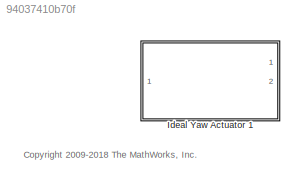
MODEL slx_94037410b70f
KIND library
CONFIG AbsTol = auto
CONFIG EnableMultiTasking = on
CONFIG FixedStep = auto
CONFIG MaxStep = auto
CONFIG MinStep = auto
CONFIG RelTol = 1e-3
CONFIG SampleTimeConstraint = Unconstrained
CONFIG Solver = ode45
CONFIG SolverName = ode45
CONFIG StartTime = 0.0
CONFIG StopTime = 10.0
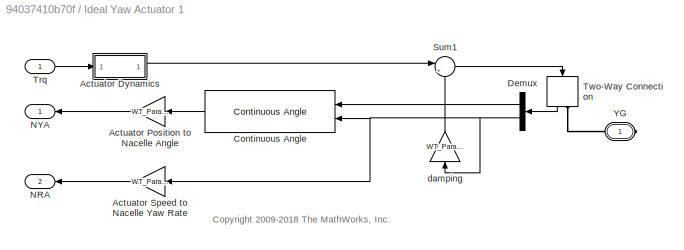
BLOCK [SubSystem] Ideal Yaw Actuator 1
  Ports = [1, 2, 0, 0, 0, 0, 1]
  RequestExecContextInheritance = off
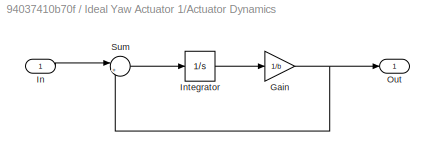
BLOCK [SubSystem] Ideal Yaw Actuator 1/Actuator Dynamics
  Ports = [1, 1]
  RequestExecContextInheritance = off
BLOCK [Gain] Ideal Yaw Actuator 1/Actuator Dynamics/Gain
  Gain = 1/b
  OutDataTypeStr = Inherit: Inherit via internal rule
  ParamDataTypeStr = Inherit: Inherit via internal rule
  SaturateOnIntegerOverflow = off
BLOCK [Inport] Ideal Yaw Actuator 1/Actuator Dynamics/In
  IconDisplay = Port number
BLOCK [Integrator] Ideal Yaw Actuator 1/Actuator Dynamics/Integrator
  InitialCondition = x_initial
  Ports = [1, 1]
BLOCK [Outport] Ideal Yaw Actuator 1/Actuator Dynamics/Out
  IconDisplay = Port number
BLOCK [Sum] Ideal Yaw Actuator 1/Actuator Dynamics/Sum
  IconShape = round
  Inputs = |+-
  Ports = [2, 1]
BLOCK [Gain] Ideal Yaw Actuator 1/Actuator Position to Nacelle Angle
  Gain = WT_Params.Yaw_Actuator.yaw_gear_diameter/WT_Params.Yaw_Actuator.yaw_ring_diameter
  OutDataTypeStr = Inherit: Inherit via internal rule
  ParamDataTypeStr = Inherit: Inherit via internal rule
  SaturateOnIntegerOverflow = off
BLOCK [Gain] Ideal Yaw Actuator 1/Actuator Speed to Nacelle Yaw Rate
  Gain = WT_Params.Yaw_Actuator.yaw_gear_diameter/WT_Params.Yaw_Actuator.yaw_ring_diameter
  OutDataTypeStr = Inherit: Inherit via internal rule
  ParamDataTypeStr = Inherit: Inherit via internal rule
  SaturateOnIntegerOverflow = off
BLOCK [Reference] Ideal Yaw Actuator 1/Continuous Angle  REF=mblibv1/Utilities/Continuous Angle
  Ports = [2, 1]
  SourceBlock = mblibv1/Utilities/Continuous Angle
  SourceProductBaseCode = MS
  SourceProductName = Simscape Multibody
  SourceType = Continuous Angle
BLOCK [Demux] Ideal Yaw Actuator 1/Demux
  DisplayOption = bar
  Outputs = 2
  Ports = [1, 2]
BLOCK [Outport] Ideal Yaw Actuator 1/NRA
  IconDisplay = Port number
  Port = 2
BLOCK [Outport] Ideal Yaw Actuator 1/NYA
  IconDisplay = Port number
BLOCK [Sum] Ideal Yaw Actuator 1/Sum1
  IconShape = round
  InputSameDT = off
  Inputs = |+-
  OutDataTypeStr = Inherit: Inherit via internal rule
  Ports = [2, 1]
  SaturateOnIntegerOverflow = off
BLOCK [Inport] Ideal Yaw Actuator 1/Trq
  IconDisplay = Port number
BLOCK [TwoWayConnection] Ideal Yaw Actuator 1/Two-Way Connection
  Ports = [1, 1, 0, 0, 0, 0, 1]
BLOCK [PMIOPort] Ideal Yaw Actuator 1/YG
  Side = Right
  Tag = PMCPort
BLOCK [Gain] Ideal Yaw Actuator 1/damping
  Gain = WT_Params.Yaw_Actuator.damping
  OutDataTypeStr = Inherit: Inherit via internal rule
  ParamDataTypeStr = Inherit: Inherit via internal rule
  SaturateOnIntegerOverflow = off
ANNOTATION (root): <copyright redacted>
ANNOTATION Ideal Yaw Actuator 1: <copyright redacted>
NET Ideal Yaw Actuator 1/Actuator Dynamics/Gain:1 -> Ideal Yaw Actuator 1/Actuator Dynamics/Out:1, Ideal Yaw Actuator 1/Actuator Dynamics/Sum:2
LINE Ideal Yaw Actuator 1/Actuator Dynamics/In:1 -> Ideal Yaw Actuator 1/Actuator Dynamics/Sum:1
LINE Ideal Yaw Actuator 1/Actuator Dynamics/Integrator:1 -> Ideal Yaw Actuator 1/Actuator Dynamics/Gain:1
LINE Ideal Yaw Actuator 1/Actuator Dynamics/Sum:1 -> Ideal Yaw Actuator 1/Actuator Dynamics/Integrator:1
LINE Ideal Yaw Actuator 1/Actuator Dynamics:1 -> Ideal Yaw Actuator 1/Sum1:1
LINE Ideal Yaw Actuator 1/Actuator Position to Nacelle Angle:1 -> Ideal Yaw Actuator 1/NYA:1
LINE Ideal Yaw Actuator 1/Actuator Speed to Nacelle Yaw Rate:1 -> Ideal Yaw Actuator 1/NRA:1
LINE Ideal Yaw Actuator 1/Continuous Angle:1 -> Ideal Yaw Actuator 1/Actuator Position to Nacelle Angle:1
LINE Ideal Yaw Actuator 1/Demux:1 -> Ideal Yaw Actuator 1/Continuous Angle:1
NET Ideal Yaw Actuator 1/Demux:2 -> Ideal Yaw Actuator 1/Actuator Speed to Nacelle Yaw Rate:1, Ideal Yaw Actuator 1/Continuous Angle:2, Ideal Yaw Actuator 1/damping:1
LINE Ideal Yaw Actuator 1/Sum1:1 -> Ideal Yaw Actuator 1/Two-Way Connection:1
LINE Ideal Yaw Actuator 1/Trq:1 -> Ideal Yaw Actuator 1/Actuator Dynamics:1
LINE Ideal Yaw Actuator 1/Two-Way Connection:1 -> Ideal Yaw Actuator 1/Demux:1
LINE Ideal Yaw Actuator 1/damping:1 -> Ideal Yaw Actuator 1/Sum1:2
PLINE Ideal Yaw Actuator 1/Two-Way Connection:RConn1 -- Ideal Yaw Actuator 1/YG:RConn1
note: NET lines group one-source signal fan-out (src -> all destinations, sorted); 1:1 wires keep LINE
